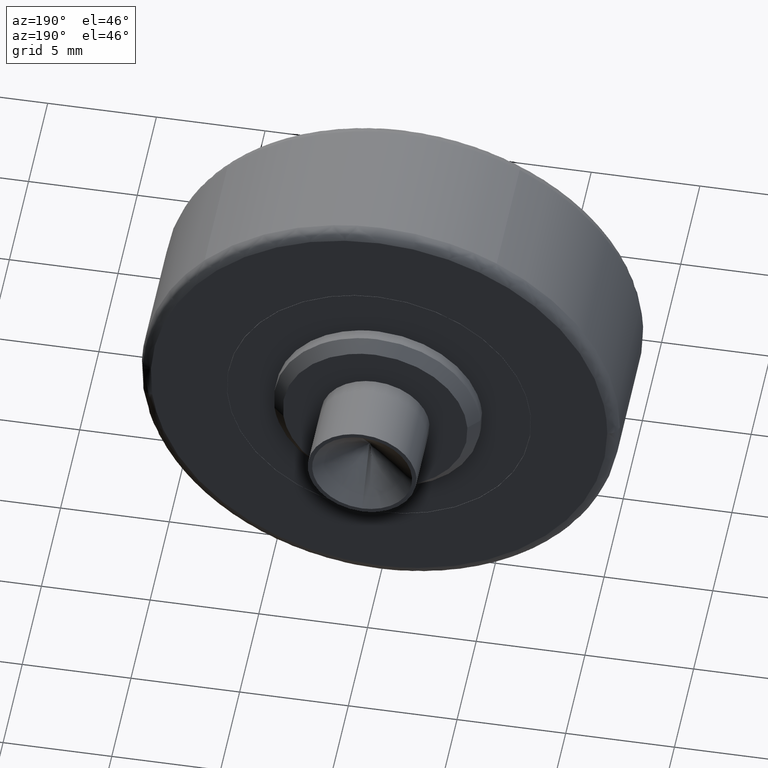
[diagram: clean part render]
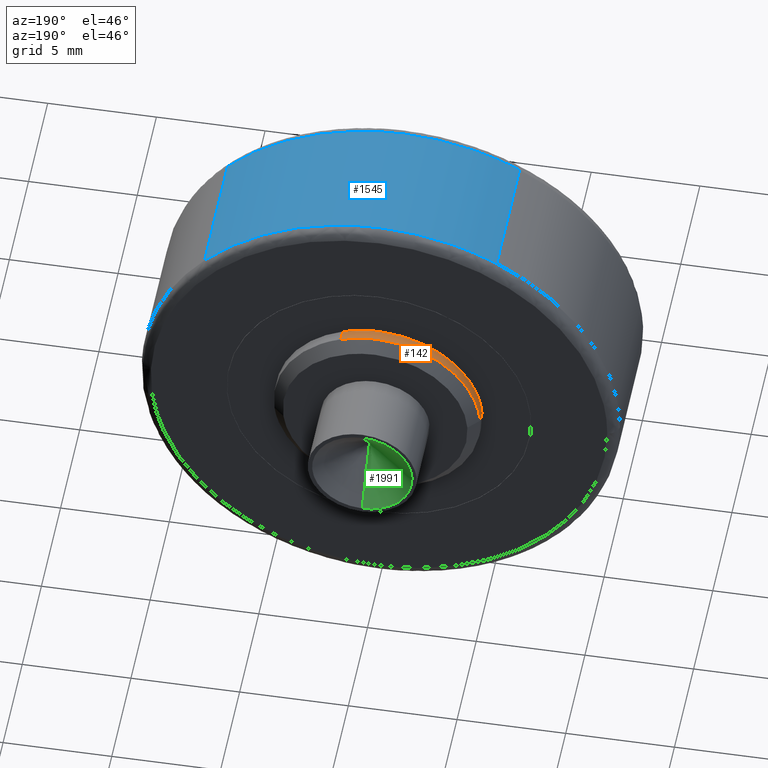
[diagram: same view with three faces highlighted in distinct colors, each labeled with its STEP entity id]
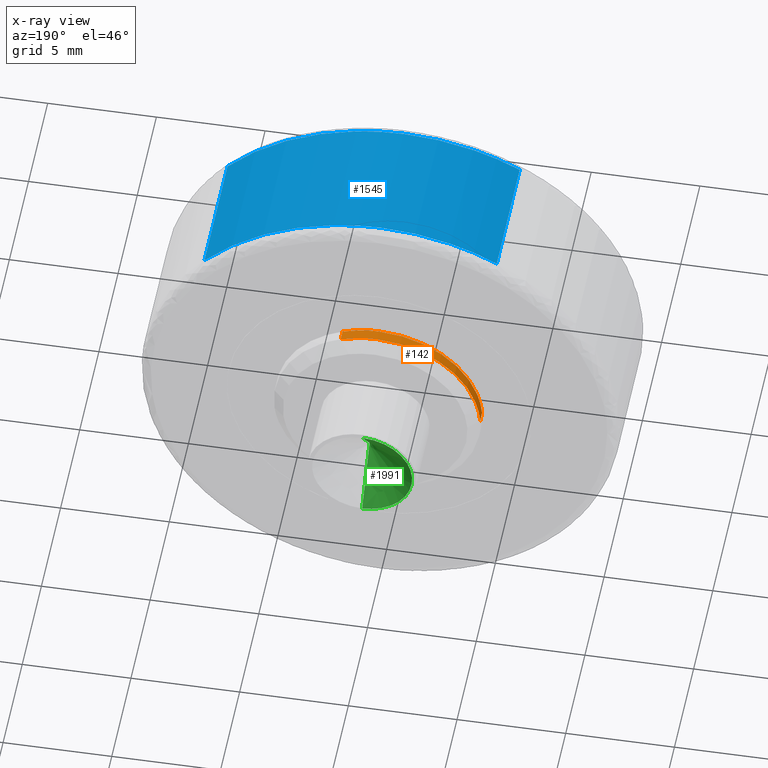
[diagram: x-ray of the same camera — body ghosted, the three highlighted faces saturated]
A machine part, auxiliary view with three faces highlighted in distinct colors.
The next image is the same camera in x-ray (body ghosted, the three faces saturated) — at least one of them is partly hidden behind the body in this view.
Their STEP definitions:

[orange] entity #142 — the highlighted face is a freeform B-spline surface patch.
#44=CARTESIAN_POINT('',(1.711915999907084,7.512500000000002,4.431007868691240));
#45=CARTESIAN_POINT('',(1.691026384837913,7.512500000000001,4.438854062697122));
#46=CARTESIAN_POINT('',(1.002199895648189,7.512500000000003,4.697579091984466));
#47=CARTESIAN_POINT('',(0.289980562790571,7.512500000000001,4.741140292503867));
#48=CARTESIAN_POINT('',(-4.451159729713296,7.512500000000002,5.031120855294438));
#49=CARTESIAN_POINT('',(-4.742368642129236,7.512500000000002,0.269897223941672));
#50=CARTESIAN_POINT('',(-4.743592688787032,7.512500000000003,0.249884237990703));
#51=CARTESIAN_POINT('',(1.711915999907084,6.987187499999999,4.431007868691240));
#52=CARTESIAN_POINT('',(1.691026384837913,6.987187499999999,4.438854062697122));
#53=CARTESIAN_POINT('',(1.002199895648189,6.987187499999999,4.697579091984466));
#54=CARTESIAN_POINT('',(0.289980562790571,6.987187499999999,4.741140292503867));
#55=CARTESIAN_POINT('',(-4.451159729713296,6.987187499999999,5.031120855294438));
#56=CARTESIAN_POINT('',(-4.742368642129236,6.987187500000000,0.269897223941672));
#57=CARTESIAN_POINT('',(-4.743592688787032,6.987187500000001,0.249884237990703));
#65=(BOUNDED_SURFACE()B_SPLINE_SURFACE(2,1,((#44,#51),(#45,#52),(#46,#53),(#47,#54),(#48,#55),(#49,#56),(#50,#57)),.UNSPECIFIED.,.F.,.F.,.U.)B_SPLINE_SURFACE_WITH_KNOTS((3,1,2,1,3),(2,2),(0.0,0.047220388093636,1.621231925111397,9.491289610200198,9.538518605171500),(0.0,1.0),.UNSPECIFIED.)GEOMETRIC_REPRESENTATION_ITEM()RATIONAL_B_SPLINE_SURFACE(((0.904165336929299,0.904165336929299),(0.905219753454497,0.905219753454497),(0.941421356237309,0.941421356237309),(1.0,1.0),(0.707106781186548,0.707106781186548),(1.001757681190149,1.001757681190149),(1.003515362380298,1.003515362380298)))REPRESENTATION_ITEM('')SURFACE());
#66=CARTESIAN_POINT('',(1.670185378363603,7.500000000000000,4.446681999187756));
#67=VERTEX_POINT('',#66);
#68=CARTESIAN_POINT('',(0.0,7.500000000000000,4.750000000000000));
#69=VERTEX_POINT('',#68);
#70=CARTESIAN_POINT('',(1.670185378363603,7.500000000000000,4.446681999187757));
#71=CARTESIAN_POINT('',(0.862635083821125,7.499999999999999,4.750000000000000));
#72=CARTESIAN_POINT('',(0.0,7.500000000000000,4.750000000000000));
#80=(BOUNDED_CURVE()B_SPLINE_CURVE(2,(#70,#71,#72),.UNSPECIFIED.,.F.,.U.)B_SPLINE_CURVE_WITH_KNOTS((3,3),(0.440284170898651,0.500000000000000),.UNSPECIFIED.)CURVE()GEOMETRIC_REPRESENTATION_ITEM()RATIONAL_B_SPLINE_CURVE((0.893499554635450,0.930038554401568,1.0))REPRESENTATION_ITEM(''));
#81=EDGE_CURVE('',#67,#69,#80,.T.);
#82=ORIENTED_EDGE('',*,*,#81,.T.);
#83=CARTESIAN_POINT('',(-4.741140292505405,7.499999999995570,0.289980562812224));
#84=VERTEX_POINT('',#83);
#85=CARTESIAN_POINT('',(0.0,7.500000000000000,4.750000000000000));
#86=CARTESIAN_POINT('',(-4.468353817720905,7.500000000000000,4.750000000000000));
#87=CARTESIAN_POINT('',(-4.741140292505405,7.499999999995570,0.289980562812224));
#95=(BOUNDED_CURVE()B_SPLINE_CURVE(2,(#85,#86,#87),.UNSPECIFIED.,.F.,.U.)B_SPLINE_CURVE_WITH_KNOTS((3,3),(0.500000000000000,0.739332962238841),.UNSPECIFIED.)CURVE()GEOMETRIC_REPRESENTATION_ITEM()RATIONAL_B_SPLINE_CURVE((1.0,0.719603993286830,0.976072041666499))REPRESENTATION_ITEM(''));
#96=EDGE_CURVE('',#69,#84,#95,.T.);
#97=ORIENTED_EDGE('',*,*,#96,.T.);
#98=CARTESIAN_POINT('',(-4.741140740981512,7.0,0.289973230059768));
#99=VERTEX_POINT('',#98);
#100=CARTESIAN_POINT('',(-4.741140292505405,7.499999999995570,0.289980562812224));
#101=CARTESIAN_POINT('',(-4.741140740981512,7.0,0.289973230059768));
#102=QUASI_UNIFORM_CURVE('',1,(#100,#101),.UNSPECIFIED.,.F.,.U.);
#103=EDGE_CURVE('',#84,#99,#102,.T.);
#104=ORIENTED_EDGE('',*,*,#103,.T.);
#105=CARTESIAN_POINT('',(0.0,7.0,4.750000000000000));
#106=VERTEX_POINT('',#105);
#107=CARTESIAN_POINT('',(0.0,7.0,4.750000000000000));
#108=CARTESIAN_POINT('',(-4.468360741555071,7.0,4.750000000000001));
#109=CARTESIAN_POINT('',(-4.741140740981512,7.0,0.289973230059768));
#117=(BOUNDED_CURVE()B_SPLINE_CURVE(2,(#107,#108,#109),.UNSPECIFIED.,.F.,.U.)B_SPLINE_CURVE_WITH_KNOTS((3,3),(0.500000000000000,0.739333229105915),.UNSPECIFIED.)CURVE()GEOMETRIC_REPRESENTATION_ITEM()RATIONAL_B_SPLINE_CURVE((1.0,0.719603680632604,0.976072613614107))REPRESENTATION_ITEM(''));
#118=EDGE_CURVE('',#106,#99,#117,.T.);
#119=ORIENTED_EDGE('',*,*,#118,.F.);
#120=CARTESIAN_POINT('',(1.670180910819253,7.0,4.446683677203966));
#121=VERTEX_POINT('',#120);
#122=CARTESIAN_POINT('',(1.670180910819253,7.0,4.446683677203966));
#123=CARTESIAN_POINT('',(0.862632618979613,7.0,4.750000000000000));
#124=CARTESIAN_POINT('',(0.0,7.0,4.750000000000000));
#132=(BOUNDED_CURVE()B_SPLINE_CURVE(2,(#122,#123,#124),.UNSPECIFIED.,.F.,.U.)B_SPLINE_CURVE_WITH_KNOTS((3,3),(0.440284329589685,0.500000000000000),.UNSPECIFIED.)CURVE()GEOMETRIC_REPRESENTATION_ITEM()RATIONAL_B_SPLINE_CURVE((0.893499748835840,0.930038740319678,1.0))REPRESENTATION_ITEM(''));
#133=EDGE_CURVE('',#121,#106,#132,.T.);
#134=ORIENTED_EDGE('',*,*,#133,.F.);
#135=CARTESIAN_POINT('',(1.670185378363603,7.500000000000000,4.446681999187756));
#136=CARTESIAN_POINT('',(1.670180910819253,7.0,4.446683677203966));
#137=QUASI_UNIFORM_CURVE('',1,(#135,#136),.UNSPECIFIED.,.F.,.U.);
#138=EDGE_CURVE('',#67,#121,#137,.T.);
#139=ORIENTED_EDGE('',*,*,#138,.F.);
#140=EDGE_LOOP('',(#82,#97,#104,#119,#134,#139));
#141=FACE_OUTER_BOUND('',#140,.T.);
#142=ADVANCED_FACE('',(#141),#65,.T.);

[blue] entity #1545 — the highlighted face is a freeform B-spline surface patch.
#1328=CARTESIAN_POINT('',(-5.326415354943078,0.499999999980704,9.624411642621212));
#1329=VERTEX_POINT('',#1328);
#1345=CARTESIAN_POINT('',(-5.326415294975528,6.500000000011898,9.624411675808897));
#1346=VERTEX_POINT('',#1345);
#1347=CARTESIAN_POINT('',(-5.326415294975528,6.500000000011898,9.624411675808897));
#1348=CARTESIAN_POINT('',(-5.326415354943078,0.499999999980704,9.624411642621212));
#1349=QUASI_UNIFORM_CURVE('',1,(#1347,#1348),.UNSPECIFIED.,.F.,.U.);
#1350=EDGE_CURVE('',#1346,#1329,#1349,.T.);
#1397=CARTESIAN_POINT('',(8.110051104148813,6.500000000000000,7.431491848080992));
#1398=VERTEX_POINT('',#1397);
#1414=CARTESIAN_POINT('',(8.110051109136098,0.500000000000004,7.431491842638323));
#1415=VERTEX_POINT('',#1414);
#1416=CARTESIAN_POINT('',(8.110051104148813,6.500000000000000,7.431491848080992));
#1417=CARTESIAN_POINT('',(8.110051109136098,0.500000000000004,7.431491842638323));
#1418=QUASI_UNIFORM_CURVE('',1,(#1416,#1417),.UNSPECIFIED.,.F.,.U.);
#1419=EDGE_CURVE('',#1398,#1415,#1418,.T.);
#1471=CARTESIAN_POINT('',(8.110050704911362,6.650000000101273,7.431492283772260));
#1472=CARTESIAN_POINT('',(2.255596293352681,6.650000000101274,13.820508152228756));
#1473=CARTESIAN_POINT('',(-5.326417054798172,6.650000000101272,9.624410701874430));
#1474=CARTESIAN_POINT('',(8.110050704911362,0.346249999843370,7.431492283772260));
#1475=CARTESIAN_POINT('',(2.255596293352681,0.346249999843370,13.820508152228756));
#1476=CARTESIAN_POINT('',(-5.326417054798172,0.346249999843370,9.624410701874430));
#1484=(BOUNDED_SURFACE()B_SPLINE_SURFACE(2,1,((#1471,#1474),(#1472,#1475),(#1473,#1476)),.UNSPECIFIED.,.F.,.F.,.U.)B_SPLINE_SURFACE_WITH_KNOTS((3,3),(2,2),(0.0,15.242384663391560),(0.0,6.303750000257903),.UNSPECIFIED.)GEOMETRIC_REPRESENTATION_ITEM()RATIONAL_B_SPLINE_SURFACE(((1.0,1.0),(0.753969696196700,0.753969696196700),(0.921270302782944,0.921270302782944)))REPRESENTATION_ITEM('')SURFACE());
#1485=CARTESIAN_POINT('',(0.0,0.500000000000000,11.0));
#1486=VERTEX_POINT('',#1485);
#1487=CARTESIAN_POINT('',(0.0,0.500000000000000,11.0));
#1488=CARTESIAN_POINT('',(-2.840835894842908,0.500000000000000,11.0));
#1489=CARTESIAN_POINT('',(-5.326415354943078,0.499999999980704,9.624411642621213));
#1497=(BOUNDED_CURVE()B_SPLINE_CURVE(2,(#1487,#1488,#1489),.UNSPECIFIED.,.F.,.U.)B_SPLINE_CURVE_WITH_KNOTS((3,3),(0.500000000000000,0.582484261791916),.UNSPECIFIED.)CURVE()GEOMETRIC_REPRESENTATION_ITEM()RATIONAL_B_SPLINE_CURVE((1.0,0.903363676249257,0.870495159113431))REPRESENTATION_ITEM(''));
#1498=EDGE_CURVE('',#1486,#1329,#1497,.T.);
#1499=ORIENTED_EDGE('',*,*,#1498,.F.);
#1500=CARTESIAN_POINT('',(8.110051109136098,0.500000000000004,7.431491842638323));
#1501=CARTESIAN_POINT('',(4.840116553980423,0.500000000000000,10.999999999999998));
#1502=CARTESIAN_POINT('',(0.0,0.500000000000000,11.0));
#1510=(BOUNDED_CURVE()B_SPLINE_CURVE(2,(#1500,#1501,#1502),.UNSPECIFIED.,.F.,.U.)B_SPLINE_CURVE_WITH_KNOTS((3,3),(0.368415192661570,0.500000000000000),.UNSPECIFIED.)CURVE()GEOMETRIC_REPRESENTATION_ITEM()RATIONAL_B_SPLINE_CURVE((0.853959782865036,0.845838808926797,1.0))REPRESENTATION_ITEM(''));
#1511=EDGE_CURVE('',#1415,#1486,#1510,.T.);
#1512=ORIENTED_EDGE('',*,*,#1511,.F.);
#1513=ORIENTED_EDGE('',*,*,#1419,.F.);
#1514=CARTESIAN_POINT('',(0.0,6.500000000000000,11.0));
#1515=VERTEX_POINT('',#1514);
#1516=CARTESIAN_POINT('',(8.110051104148813,6.500000000000000,7.431491848080992));
#1517=CARTESIAN_POINT('',(4.840116545169058,6.500000000000001,10.999999999999998));
#1518=CARTESIAN_POINT('',(0.0,6.500000000000000,11.0));
#1526=(BOUNDED_CURVE()B_SPLINE_CURVE(2,(#1516,#1517,#1518),.UNSPECIFIED.,.F.,.U.)B_SPLINE_CURVE_WITH_KNOTS((3,3),(0.368415192864190,0.500000000000000),.UNSPECIFIED.)CURVE()GEOMETRIC_REPRESENTATION_ITEM()RATIONAL_B_SPLINE_CURVE((0.853959782840026,0.845838809164181,1.0))REPRESENTATION_ITEM(''));
#1527=EDGE_CURVE('',#1398,#1515,#1526,.T.);
#1528=ORIENTED_EDGE('',*,*,#1527,.T.);
#1529=CARTESIAN_POINT('',(0.0,6.500000000000000,11.0));
#1530=CARTESIAN_POINT('',(-2.840835858287986,6.500000000000000,11.0));
#1531=CARTESIAN_POINT('',(-5.326415294975528,6.500000000011898,9.624411675808897));
#1539=(BOUNDED_CURVE()B_SPLINE_CURVE(2,(#1529,#1530,#1531),.UNSPECIFIED.,.F.,.U.)B_SPLINE_CURVE_WITH_KNOTS((3,3),(0.500000000000000,0.582484260833104),.UNSPECIFIED.)CURVE()GEOMETRIC_REPRESENTATION_ITEM()RATIONAL_B_SPLINE_CURVE((1.0,0.903363677372575,0.870495159877570))REPRESENTATION_ITEM(''));
#1540=EDGE_CURVE('',#1515,#1346,#1539,.T.);
#1541=ORIENTED_EDGE('',*,*,#1540,.T.);
#1542=ORIENTED_EDGE('',*,*,#1350,.T.);
#1543=EDGE_LOOP('',(#1499,#1512,#1513,#1528,#1541,#1542));
#1544=FACE_OUTER_BOUND('',#1543,.T.);
#1545=ADVANCED_FACE('',(#1544),#1484,.T.);

[green] entity #1991 — the highlighted face is a freeform B-spline surface patch.
#1868=CARTESIAN_POINT('',(9.388649E-017,11.400000000000000,-2.299999999999999));
#1869=VERTEX_POINT('',#1868);
#1870=CARTESIAN_POINT('',(-9.388649E-017,11.400000000000000,2.299999999999999));
#1871=VERTEX_POINT('',#1870);
#1887=CARTESIAN_POINT('',(0.0,9.470070848292259,-1.962843E-016));
#1888=VERTEX_POINT('',#1887);
#1889=CARTESIAN_POINT('',(0.0,9.470070848292259,-1.962843E-016));
#1890=CARTESIAN_POINT('',(9.388649E-017,11.400000000000000,-2.299999999999999));
#1891=QUASI_UNIFORM_CURVE('',1,(#1889,#1890),.UNSPECIFIED.,.F.,.U.);
#1892=EDGE_CURVE('',#1888,#1869,#1891,.T.);
#1894=CARTESIAN_POINT('',(0.0,9.470070848292259,-1.962843E-016));
#1895=CARTESIAN_POINT('',(-9.388649E-017,11.400000000000000,2.299999999999999));
#1896=QUASI_UNIFORM_CURVE('',1,(#1894,#1895),.UNSPECIFIED.,.F.,.U.);
#1897=EDGE_CURVE('',#1888,#1871,#1896,.T.);
#1949=CARTESIAN_POINT('',(0.0,11.400000000000000,2.300000000000000));
#1950=CARTESIAN_POINT('',(-2.300000000000000,11.399999999999999,2.300000000000000));
#1951=CARTESIAN_POINT('',(-2.300000000000000,11.400000000000000,-1.962843E-016));
#1952=CARTESIAN_POINT('',(-2.300000000000000,11.399999999999999,-2.300000000000000));
#1953=CARTESIAN_POINT('',(0.0,11.400000000000000,-2.300000000000000));
#1961=(BOUNDED_CURVE()B_SPLINE_CURVE(2,(#1949,#1950,#1951,#1952,#1953),.UNSPECIFIED.,.F.,.U.)B_SPLINE_CURVE_WITH_KNOTS((3,2,3),(0.0,0.500000000000000,1.0),.UNSPECIFIED.)CURVE()GEOMETRIC_REPRESENTATION_ITEM()RATIONAL_B_SPLINE_CURVE((1.0,0.707106781186547,1.0,0.707106781186547,1.0))REPRESENTATION_ITEM(''));
#1962=EDGE_CURVE('',#1871,#1869,#1961,.T.);
#1968=CARTESIAN_POINT('',(1.032499E-032,9.470070848292258,-1.962843E-016));
#1969=CARTESIAN_POINT('',(0.061749784999007,11.449454434512511,2.358129151034527));
#1970=CARTESIAN_POINT('',(-4.297536E-031,9.470070848292258,-1.962843E-016));
#1971=CARTESIAN_POINT('',(-2.423199847206846,11.449454434512511,2.423199847206853));
#1972=CARTESIAN_POINT('',(-3.944305E-031,9.470070848292258,-1.962843E-016));
#1973=CARTESIAN_POINT('',(-2.358129151034528,11.449454434512511,-0.061749784999000));
#1974=CARTESIAN_POINT('',(-3.581280E-031,9.470070848292258,-1.962843E-016));
#1975=CARTESIAN_POINT('',(-2.293058454862209,11.449454434512511,-2.546699417204854));
#1976=CARTESIAN_POINT('',(4.930381E-032,9.470070848292258,-1.962843E-016));
#1977=CARTESIAN_POINT('',(0.185080103128500,11.449454434512511,-2.351665682943090));
#1985=(BOUNDED_SURFACE()B_SPLINE_SURFACE(1,2,((#1968,#1970,#1972,#1974,#1976),(#1969,#1971,#1973,#1975,#1977)),.UNSPECIFIED.,.F.,.F.,.U.)B_SPLINE_SURFACE_WITH_KNOTS((2,2),(3,2,3),(0.0,1.0),(0.0,1.0,2.0),.UNSPECIFIED.)GEOMETRIC_REPRESENTATION_ITEM()RATIONAL_B_SPLINE_SURFACE(((1.0,0.688354575693754,1.0,0.688354575693754,1.0),(1.0,0.688354575693754,1.0,0.688354575693754,1.0)))REPRESENTATION_ITEM('')SURFACE());
#1986=ORIENTED_EDGE('',*,*,#1892,.T.);
#1987=ORIENTED_EDGE('',*,*,#1962,.F.);
#1988=ORIENTED_EDGE('',*,*,#1897,.F.);
#1989=EDGE_LOOP('',(#1986,#1987,#1988));
#1990=FACE_OUTER_BOUND('',#1989,.T.);
#1991=ADVANCED_FACE('',(#1990),#1985,.F.);